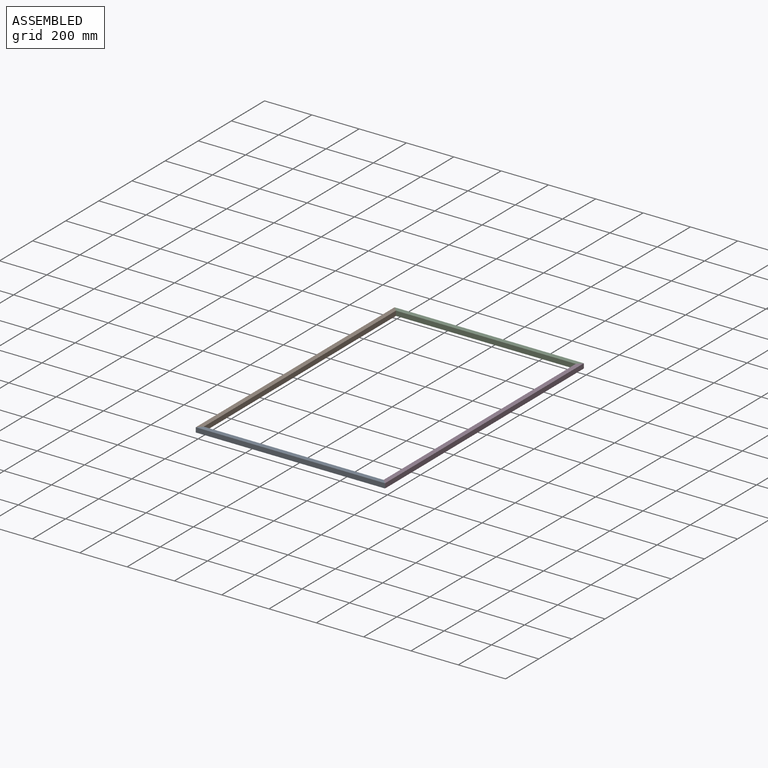
[diagram: assembled view]
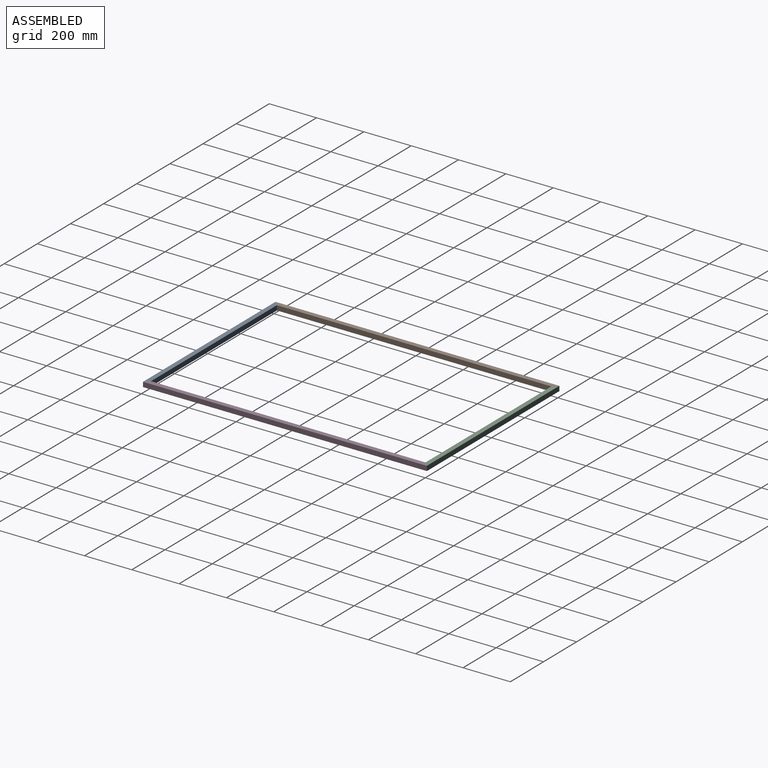
[diagram: assembled view, second angle]
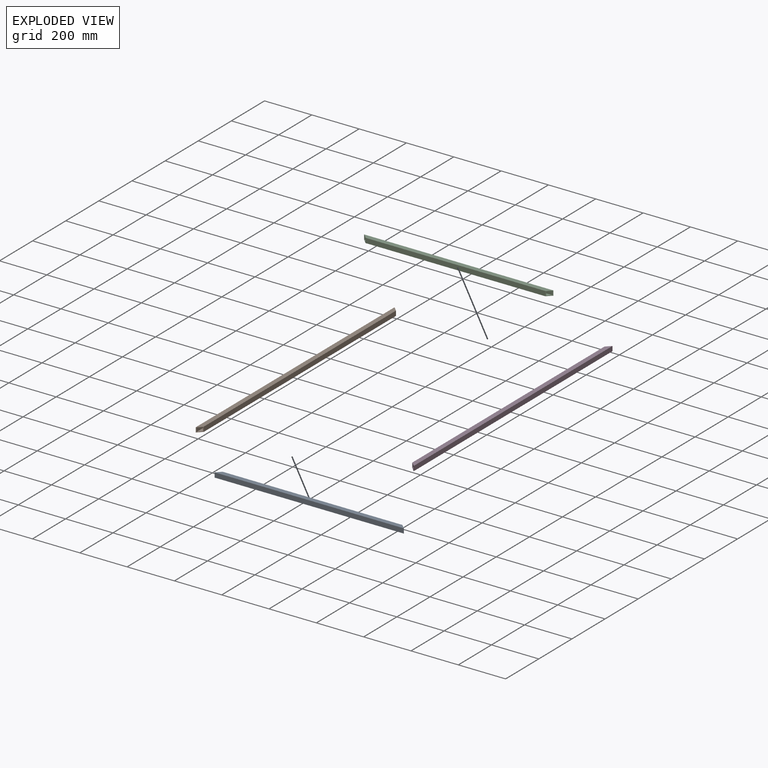
[diagram: exploded view]
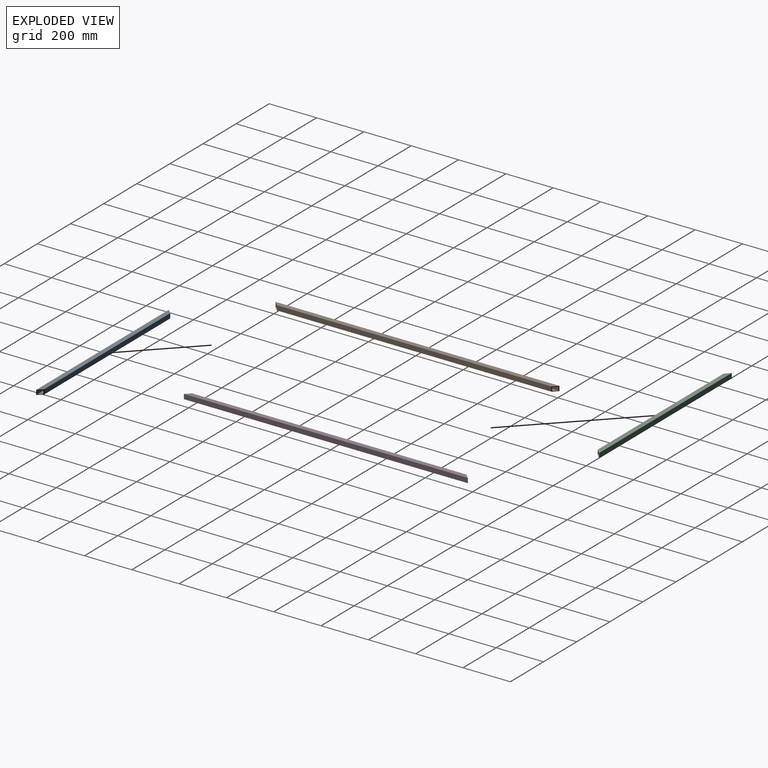
[diagram: exploded view, second angle]
ASSEMBLY  parts=4 mates=3
PART A: 10 faces, bbox 800x20x20 mm
  f0: plane 760x20mm, normal (0,-1,0), area 15200mm2, adj f5,f6,f8,f9
  f1: plane 764x16mm, normal (0,1,0), area 12224mm2, adj f2,f4,f8,f9
  f2: plane 796x16mm, normal (0,0,-1), area 12480mm2, adj f1,f3,f8,f9
  f3: plane 796x16mm, normal (0,-1,0), area 12736mm2, adj f2,f4,f8,f9
  f4: plane 796x16mm, normal (0,0,1), area 12480mm2, adj f1,f3,f8,f9
  f5: plane 800x20mm, normal (0,0,1), area 15600mm2, adj f0,f7,f8,f9
  f6: plane 800x20mm, normal (0,0,-1), area 15600mm2, adj f0,f7,f8,f9
  f7: plane 800x20mm, normal (0,1,0), area 16000mm2, adj f5,f6,f8,f9
  f8: plane 20x20mm, normal (0.71,-0.71,0), area 203.6mm2, adj f0,f1,f2,f3,f4,f5,f6,f7
  f9: plane 20x20mm, normal (-0.71,-0.71,0), area 203.6mm2, adj f0,f1,f2,f3,f4,f5,f6,f7
PART B: 10 faces, bbox 20x1200x20 mm
  f0: plane 1160x20mm, normal (1,0,0), area 23200mm2, adj f1,f2,f8,f9
  f1: plane 1200x20mm, normal (0,0,1), area 23600mm2, adj f0,f7,f8,f9
  f2: plane 1200x20mm, normal (0,0,-1), area 23600mm2, adj f0,f7,f8,f9
  f3: plane 1196x16mm, normal (1,0,0), area 19136mm2, adj f4,f6,f8,f9
  f4: plane 1196x16mm, normal (0,0,-1), area 18880mm2, adj f3,f5,f8,f9
  f5: plane 1164x16mm, normal (-1,0,0), area 18624mm2, adj f4,f6,f8,f9
  f6: plane 1196x16mm, normal (0,0,1), area 18880mm2, adj f3,f5,f8,f9
  f7: plane 1200x20mm, normal (-1,0,0), area 24000mm2, adj f1,f2,f8,f9
  f8: plane 20x20mm, normal (0.71,-0.71,0), area 203.6mm2, adj f0,f1,f2,f3,f4,f5,f6,f7
  f9: plane 20x20mm, normal (0.71,0.71,0), area 203.6mm2, adj f0,f1,f2,f3,f4,f5,f6,f7
PART C: same geometry as A
PART D: same geometry as B
PLACE A rot(axis=(1,0,0),180deg) t=(-9.94,-590,-10)mm
PLACE B t=(0.06,600,-10)mm
PLACE C t=(-9.94,590,-10)mm
PLACE D rot(axis=(0,1,0),180deg) t=(780.06,600,-10)mm
MATE fastened C.f8 <-> D.f9  axis (0.71,-0.71,0) through (780.06,590,-10)mm
MATE fastened A.f9 <-> B.f8  axis (-0.71,0.71,0) through (0.06,-590,-10)mm
MATE fastened D.f8 <-> A.f8  axis (-0.71,-0.71,0) through (780.06,-590,-10)mm
